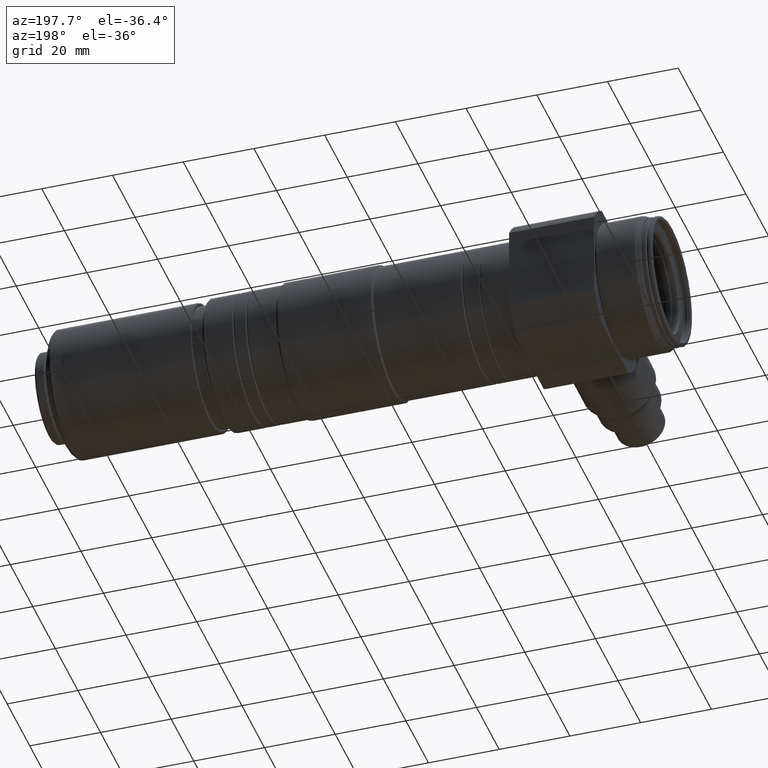
[diagram: clean part render]
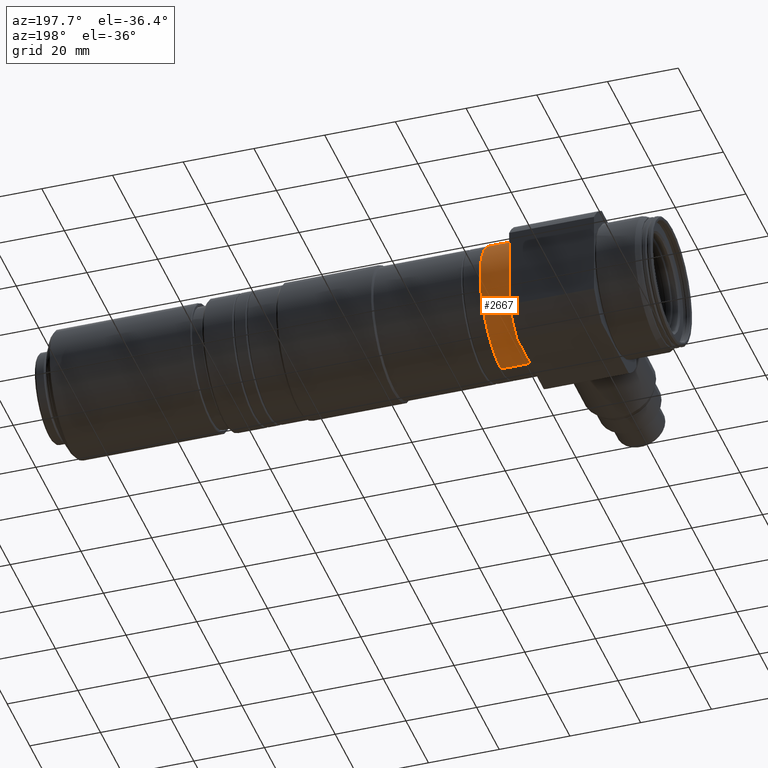
[diagram: same view with one face highlighted and labeled with its STEP entity id]
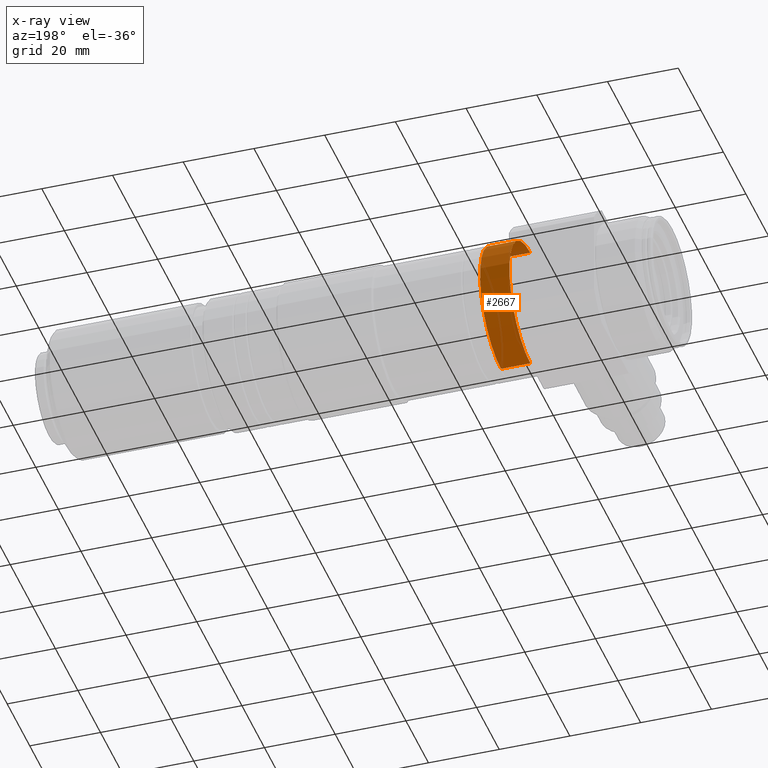
[diagram: x-ray of the same camera — body ghosted, the highlighted face saturated]
A machine part, auxiliary view. The second image highlights one B-rep face of the part: STEP entity #2667.
The next image is the same camera in x-ray: the body ghosted, the highlighted face saturated — about 2% of this face is hidden behind the body in this view.
In plain terms, the highlighted cylindrical surface (partial cylindrical patch) has radius 18.5 mm, axis along (-1, -0, -0).
Its self-contained STEP definition (entity closure, byte-faithful):
#20 = LINE ( 'NONE', #1145, #6446 ) ;
#38 = CARTESIAN_POINT ( 'NONE',  ( 8.060974633347258900, 0.0000000000000000000, 0.0000000000000000000 ) ) ;
#44 = ORIENTED_EDGE ( 'NONE', *, *, #1113, .F. ) ;
#602 = ORIENTED_EDGE ( 'NONE', *, *, #7003, .T. ) ;
#697 = VERTEX_POINT ( 'NONE', #6182 ) ;
#730 = CARTESIAN_POINT ( 'NONE',  ( 48.43097463334724000, 0.0000000000000000000, 0.0000000000000000000 ) ) ;
#1113 = EDGE_CURVE ( 'NONE', #1114, #7102, #20, .T. ) ;
#1114 = VERTEX_POINT ( 'NONE', #4107 ) ;
#1145 = CARTESIAN_POINT ( 'NONE',  ( 8.060974633347258900, 0.0000000000000000000, 18.50000000000013500 ) ) ;
#1337 = DIRECTION ( 'NONE',  ( 0.0000000000000000000, 0.0000000000000000000, 1.000000000000000000 ) ) ;
#1640 = VECTOR ( 'NONE', #2007, 1000.000000000000000 ) ;
#1805 = VERTEX_POINT ( 'NONE', #7593 ) ;
#2007 = DIRECTION ( 'NONE',  ( -1.000000000000000000, -0.0000000000000000000, -0.0000000000000000000 ) ) ;
#2298 = AXIS2_PLACEMENT_3D ( 'NONE', #2850, #7221, #3479 ) ;
#2451 = FACE_OUTER_BOUND ( 'NONE', #6108, .T. ) ;
#2667 = ADVANCED_FACE ( 'NONE', ( #2451 ), #5587, .T. ) ;
#2850 = CARTESIAN_POINT ( 'NONE',  ( 40.13097463334723600, 0.0000000000000000000, 0.0000000000000000000 ) ) ;
#2923 = AXIS2_PLACEMENT_3D ( 'NONE', #38, #3785, #6896 ) ;
#3269 = CARTESIAN_POINT ( 'NONE',  ( 8.060974633347258900, 2.265596578422620000E-015, -18.50000000000013500 ) ) ;
#3479 = DIRECTION ( 'NONE',  ( 0.0000000000000000000, 0.0000000000000000000, 1.000000000000000000 ) ) ;
#3553 = DIRECTION ( 'NONE',  ( -1.000000000000000000, -0.0000000000000000000, -0.0000000000000000000 ) ) ;
#3785 = DIRECTION ( 'NONE',  ( -1.000000000000000000, -0.0000000000000000000, -0.0000000000000000000 ) ) ;
#3952 = EDGE_CURVE ( 'NONE', #7102, #1805, #8024, .T. ) ;
#4107 = CARTESIAN_POINT ( 'NONE',  ( 48.43097463334724000, 0.0000000000000000000, 18.50000000000013500 ) ) ;
#4606 = EDGE_CURVE ( 'NONE', #697, #1805, #6622, .T. ) ;
#4841 = ORIENTED_EDGE ( 'NONE', *, *, #4606, .T. ) ;
#5090 = DIRECTION ( 'NONE',  ( -1.000000000000000000, -0.0000000000000000000, -0.0000000000000000000 ) ) ;
#5551 = AXIS2_PLACEMENT_3D ( 'NONE', #730, #5090, #1337 ) ;
#5587 = CYLINDRICAL_SURFACE ( 'NONE', #2923, 18.50000000000013500 ) ;
#5616 = ORIENTED_EDGE ( 'NONE', *, *, #3952, .F. ) ;
#6108 = EDGE_LOOP ( 'NONE', ( #602, #4841, #5616, #44 ) ) ;
#6182 = CARTESIAN_POINT ( 'NONE',  ( 48.43097463334724000, 2.265596578422620000E-015, -18.50000000000013500 ) ) ;
#6413 = CARTESIAN_POINT ( 'NONE',  ( 40.13097463334723600, 0.0000000000000000000, 18.50000000000013500 ) ) ;
#6446 = VECTOR ( 'NONE', #3553, 1000.000000000000000 ) ;
#6622 = LINE ( 'NONE', #3269, #1640 ) ;
#6896 = DIRECTION ( 'NONE',  ( 0.0000000000000000000, 0.0000000000000000000, 1.000000000000000000 ) ) ;
#7003 = EDGE_CURVE ( 'NONE', #1114, #697, #8005, .T. ) ;
#7102 = VERTEX_POINT ( 'NONE', #6413 ) ;
#7221 = DIRECTION ( 'NONE',  ( -1.000000000000000000, -0.0000000000000000000, -0.0000000000000000000 ) ) ;
#7593 = CARTESIAN_POINT ( 'NONE',  ( 40.13097463334723600, 2.265596578422620000E-015, -18.50000000000013500 ) ) ;
#8005 = CIRCLE ( 'NONE', #5551, 18.50000000000013500 ) ;
#8024 = CIRCLE ( 'NONE', #2298, 18.50000000000013500 ) ;